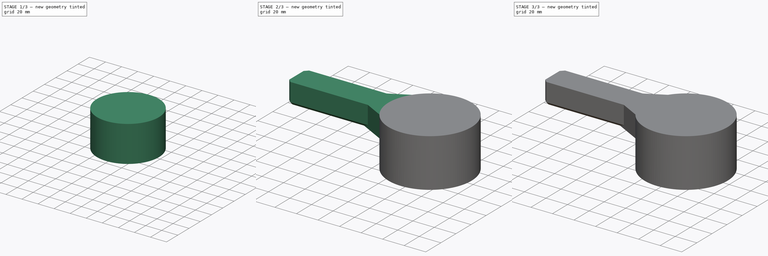
[diagram: build sequence overview — one tinted view per stage of 3, left to right]
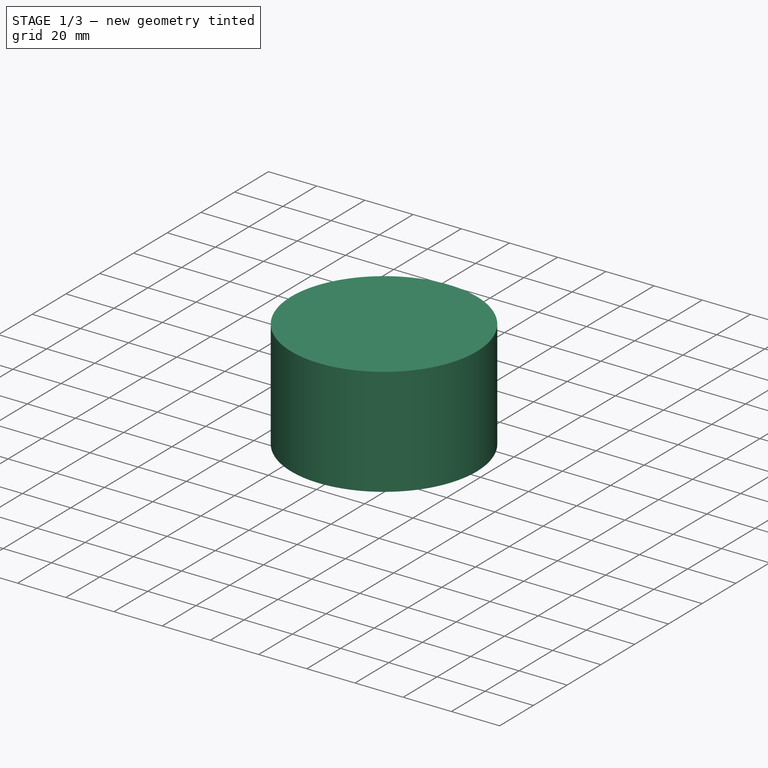
[diagram: stage 1 of 3 — iso view after this stage's code; geometry added in this stage tinted green]
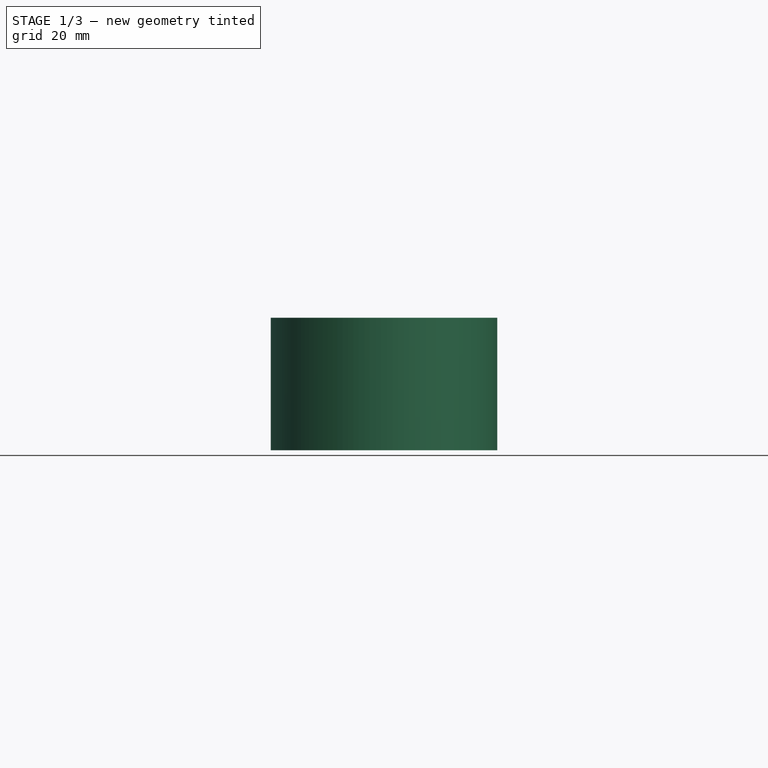
[diagram: stage 1 of 3 — front view after this stage's code; geometry added in this stage tinted green]
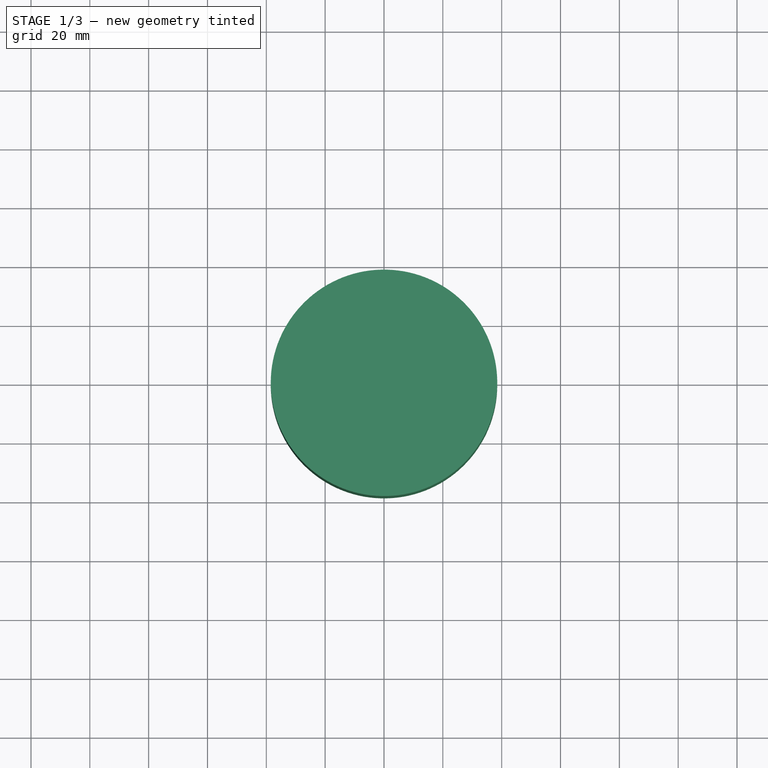
[diagram: stage 1 of 3 — top view after this stage's code; geometry added in this stage tinted green]
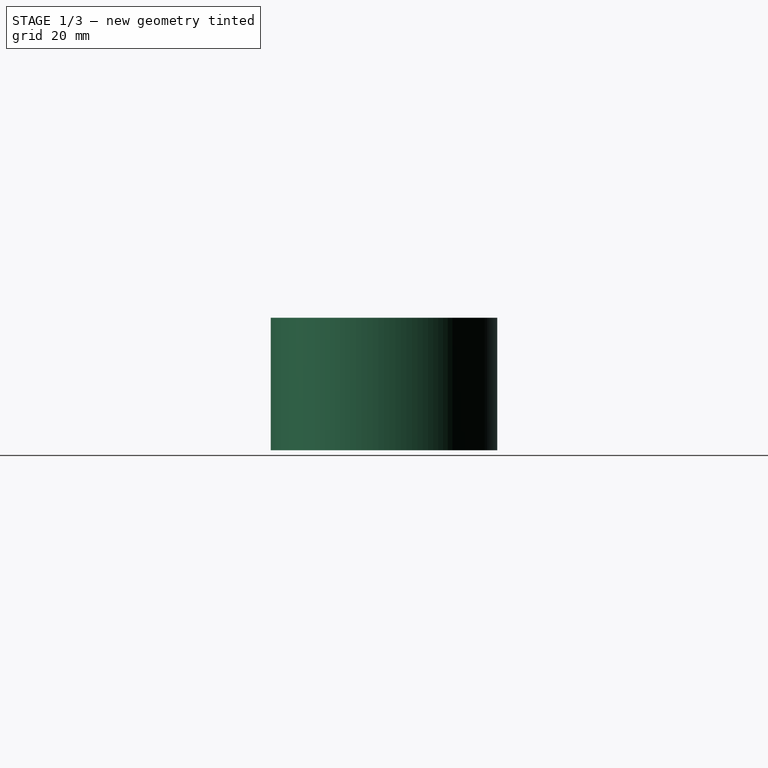
[diagram: stage 1 of 3 — right view after this stage's code; geometry added in this stage tinted green]
FCSTD DOCUMENT  (FreeCAD 1.1R40607 (Git))
Label: ключик под ключик
License: All rights reserved
LicenseURL: https://en.wikipedia.org/wiki/All_rights_reserved
objects: Sketcher::SketchObject×4, PartDesign::Pad×4, App::Point×2, PartDesign::Body×2, PartDesign::AdditiveLoft×1, PartDesign::Chamfer×1, PartDesign::Boolean×1
note: 30 computed .brp shape members not serialized (recipe doc carries the construction recipe); baked Part::Feature solids carry a one-line shape summary decoded from their .brp

FEATURE [PartDesign::Body] Body  label="Тело"
  AllowCompound = false
  Group = -> [Sketch,Pad]
  Origin = -> Origin
  Tip = -> Pad
FEATURE [App::Point] Origin003  label="Начало координат002"
  Role = Origin
FEATURE [Sketcher::SketchObject] Sketch001
  ArcFitTolerance = 1e-06
  AttachmentSupport = -> [XY_Plane001]
  ExternalTypes = [0]
  FullyConstrained = true
  MakeInternals = false
  MapMode = 5
  sketch-geometry (1):
    g0: Circle CenterX=0 CenterY=0 CenterZ=0 NormalX=0 NormalY=0 NormalZ=1 AngleXU=0 Radius=38.5
  constraints (2):
    c: Coincident(g0,g-1)
    c: Diameter(g0) = 77
FEATURE [PartDesign::Pad] Pad001
  Direction = (0,0,1)
  Length = 30
  Length2 = 10
  Profile = -> Sketch001
  ReferenceAxis = -> Sketch001 [N_Axis]
  Refine = true
  Suppressed = false
  Type = 0
FEATURE [Sketcher::SketchObject] Sketch004
  ArcFitTolerance = 1e-06
  AttachmentOffset = pos=(0,0,-49) rot=(0,0,1;0rad)
  AttachmentSupport = -> [YZ_Plane001]
  ExternalTypes = [0]
  FullyConstrained = true
  MakeInternals = false
  MapMode = 5
  Placement = pos=(-49,0,0) rot=(0.57735,0.57735,0.57735;2.0944rad)
  sketch-geometry (5):
    g0: LineSegment StartX=12.5 StartY=44.9999 StartZ=0 EndX=-12.5 EndY=44.9999 EndZ=0
    g1: LineSegment StartX=-12.5 StartY=44.9999 StartZ=0 EndX=-12.5 EndY=24.9999 EndZ=0
    g2: LineSegment StartX=-12.5 StartY=24.9999 StartZ=0 EndX=12.5 EndY=24.9999 EndZ=0
    g3: LineSegment StartX=12.5 StartY=24.9999 StartZ=0 EndX=12.5 EndY=44.9999 EndZ=0
    g4: GeomPoint X=0 Y=34.9999 Z=0
  constraints (13):
    c: Coincident(g0,g1)
    c: Coincident(g1,g2)
    c: Coincident(g2,g3)
    c: Coincident(g3,g0)
    c: Horizontal(g0)
    c: Horizontal(g2)
    c: Vertical(g1)
    c: Vertical(g3)
    c: PointOnObject(g0,g-3)
    c: Symmetric(g1,g0,g4)
    c: PointOnObject(g4,g-2)
    c: DistanceX(g2,g2) = 25
    c: DistanceY(g3,g3) = 20
FEATURE [PartDesign::Pad] Pad003
  BaseFeature = -> Pad001
  Direction = (0,0,1)
  Length = 15
  Length2 = 10
  Profile = -> Pad001 [Face3]
  Refine = true
  Suppressed = false
  Type = 0
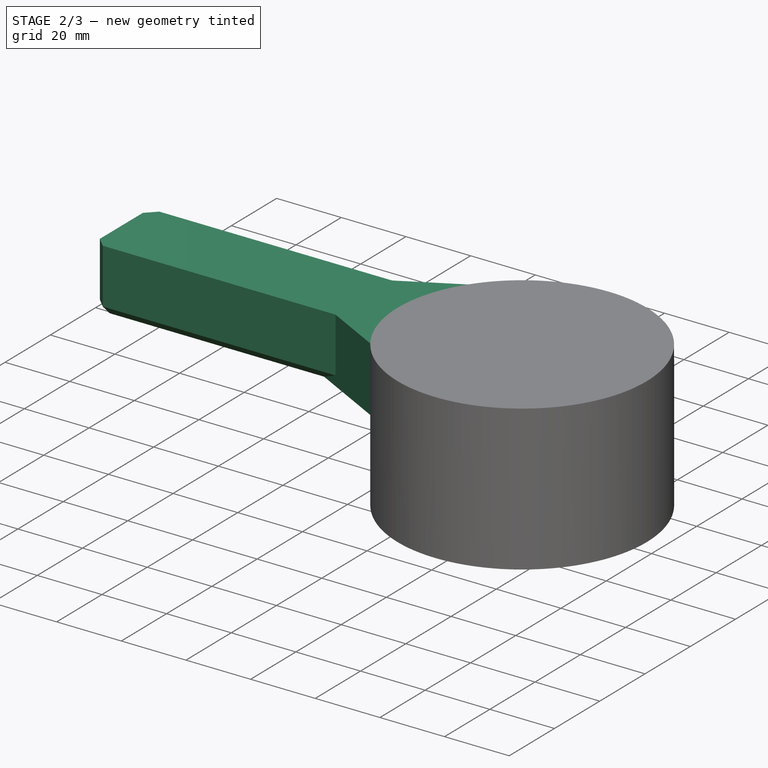
[diagram: stage 2 of 3 — iso view after this stage's code; geometry added in this stage tinted green]
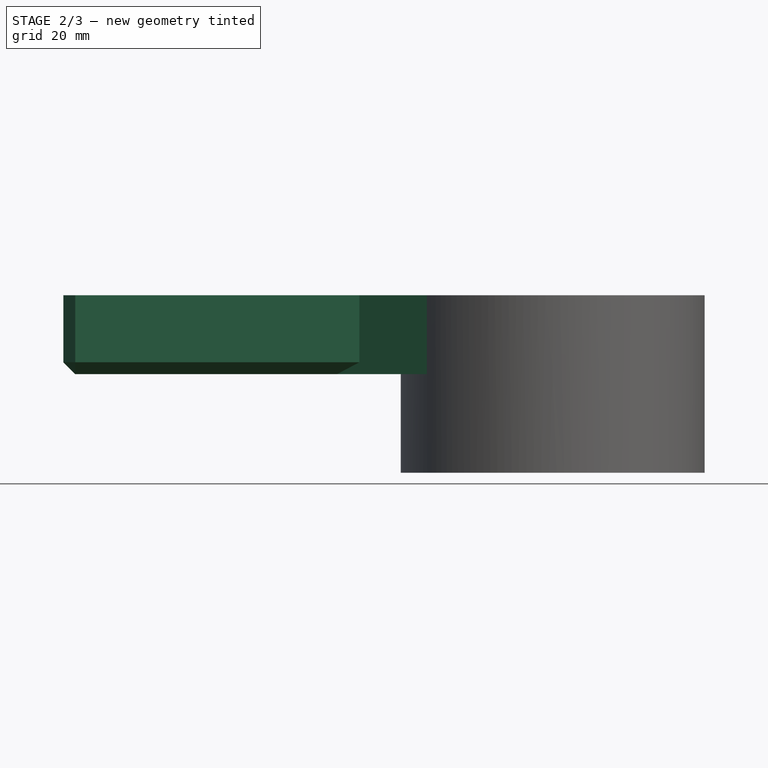
[diagram: stage 2 of 3 — front view after this stage's code; geometry added in this stage tinted green]
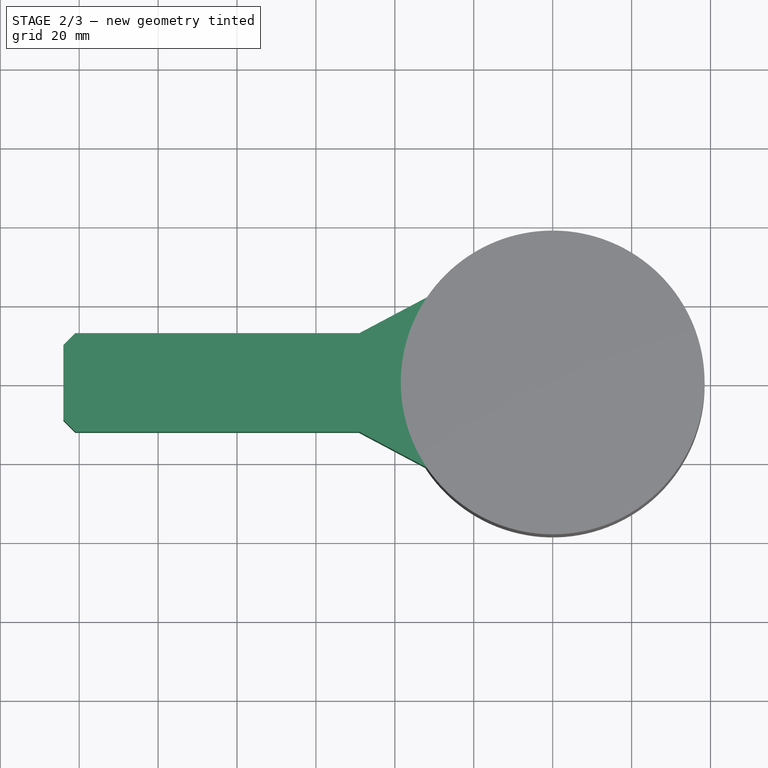
[diagram: stage 2 of 3 — top view after this stage's code; geometry added in this stage tinted green]
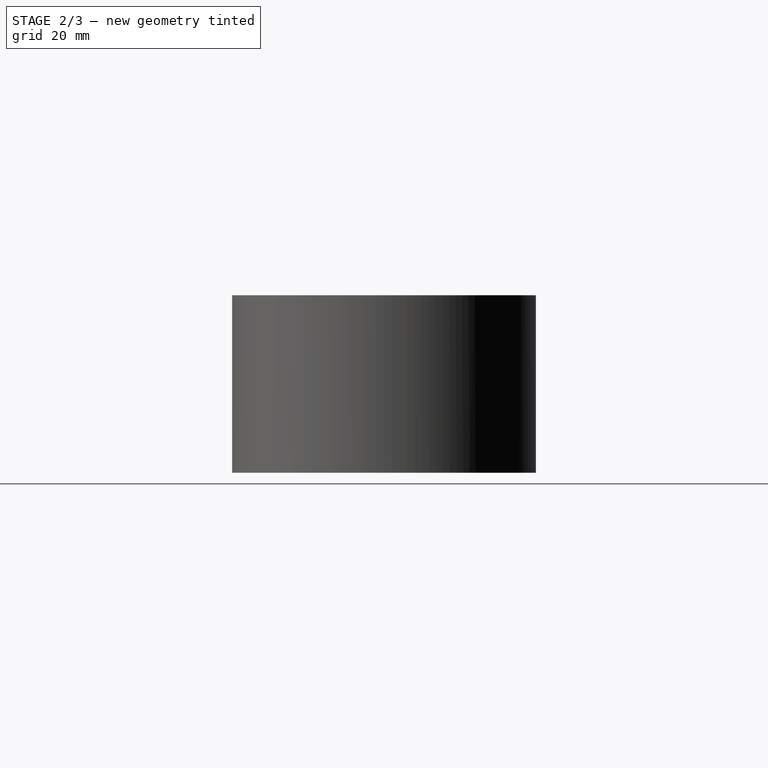
[diagram: stage 2 of 3 — right view after this stage's code; geometry added in this stage tinted green]
FEATURE [Sketcher::SketchObject] Sketch003
  ArcFitTolerance = 1e-06
  AttachmentSupport = -> [YZ_Plane001]
  ExternalGeometry = -> [Pad003]
  ExternalTypes = [0]
  FullyConstrained = true
  MakeInternals = false
  MapMode = 5
  Placement = pos=(0,0,0) rot=(0.57735,0.57735,0.57735;2.0944rad)
  sketch-geometry (4):
    g0: LineSegment StartX=-38.5 StartY=45 StartZ=0 EndX=-38.5 EndY=25 EndZ=0
    g1: LineSegment StartX=-38.5 StartY=25 StartZ=0 EndX=38.5 EndY=25 EndZ=0
    g2: LineSegment StartX=38.5 StartY=25 StartZ=0 EndX=38.5 EndY=45 EndZ=0
    g3: LineSegment StartX=38.5 StartY=45 StartZ=0 EndX=-38.5 EndY=45 EndZ=0
  constraints (10):
    c: Coincident(g0,g1)
    c: Coincident(g1,g2)
    c: Coincident(g2,g3)
    c: Coincident(g3,g0)
    c: Vertical(g0)
    c: Vertical(g2)
    c: Horizontal(g1)
    c: Coincident(g0,g-3)
    c: Coincident(g-3,g2)
    c: DistanceY(g2,g2) = 20
FEATURE [PartDesign::AdditiveLoft] AdditiveLoft
  BaseFeature = -> Pad003
  Closed = false
  Profile = -> Sketch003
  Refine = true
  Ruled = false
  Sections = -> [Sketch004]
  Suppressed = false
FEATURE [PartDesign::Pad] Pad004
  BaseFeature = -> AdditiveLoft
  Direction = (-1,0,0)
  Length = 75
  Length2 = 10
  Profile = -> AdditiveLoft [Face7]
  Refine = true
  Suppressed = false
  Type = 0
FEATURE [PartDesign::Chamfer] Chamfer
  Angle = 45
  Base = -> Pad004 [Edge22,Edge24,Edge25,Edge27,Edge23]
  BaseFeature = -> Pad004
  ChamferType = 0
  FlipDirection = false
  Refine = true
  Size = 3
  Size2 = 1
  SupportTransform = false
  Suppressed = false
  UseAllEdges = false
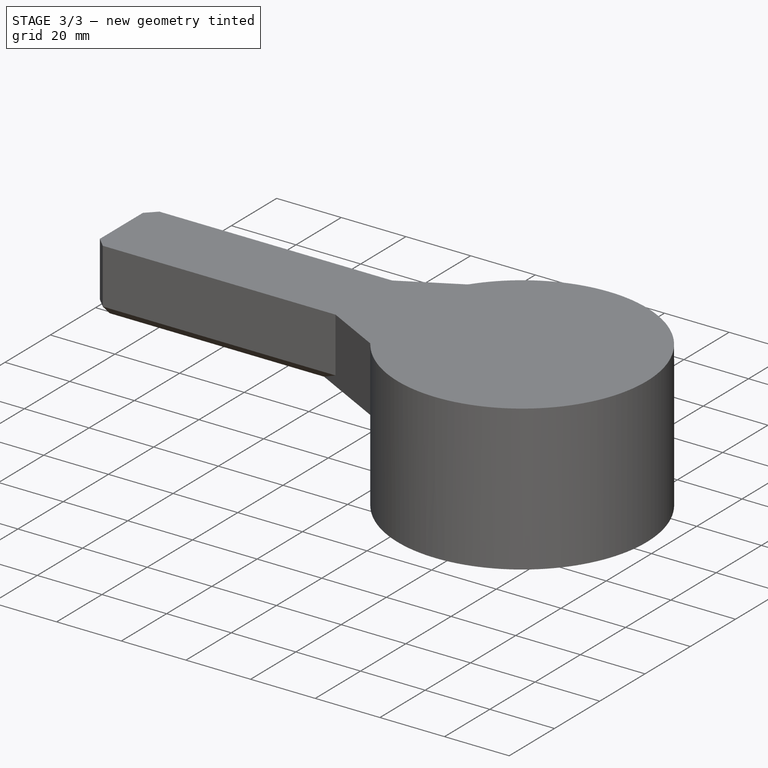
[diagram: stage 3 of 3 — iso view after this stage's code; geometry added in this stage tinted green]
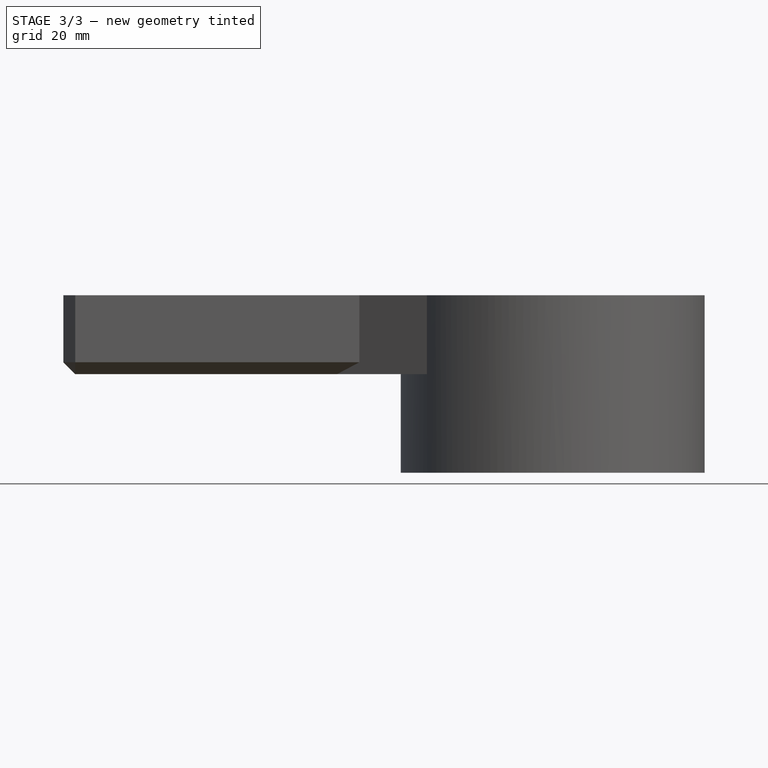
[diagram: stage 3 of 3 — front view after this stage's code; geometry added in this stage tinted green]
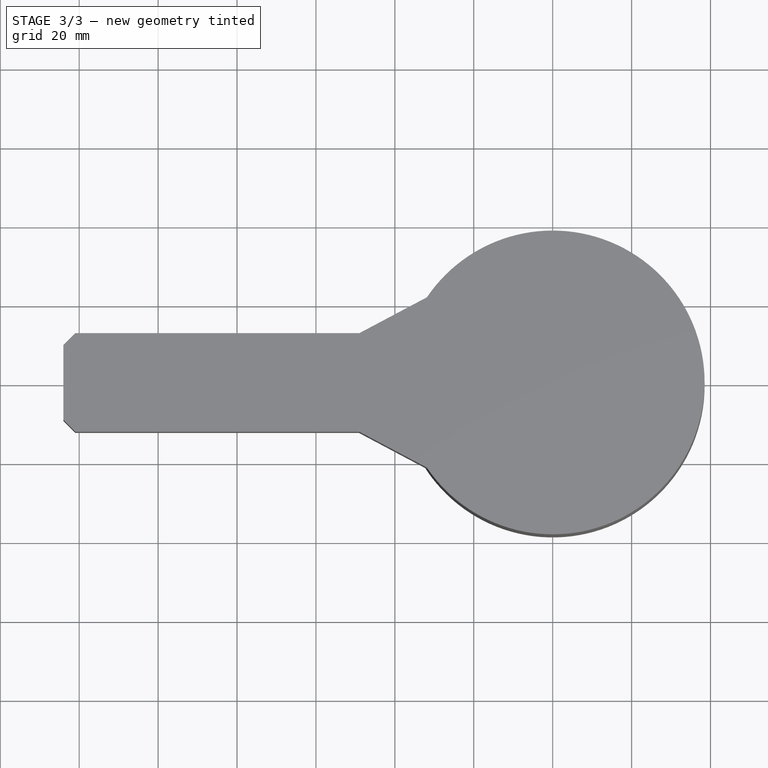
[diagram: stage 3 of 3 — top view after this stage's code; geometry added in this stage tinted green]
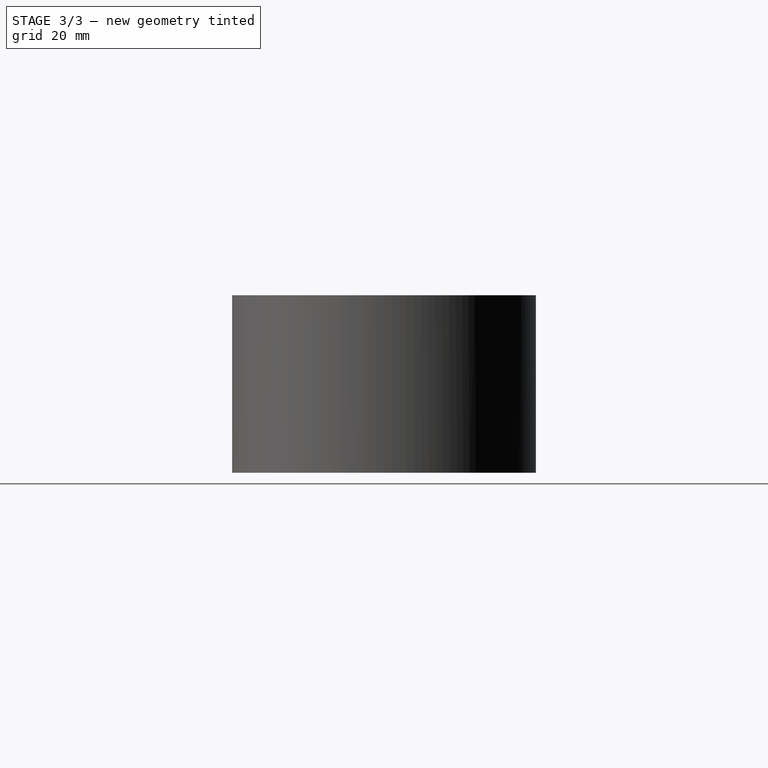
[diagram: stage 3 of 3 — right view after this stage's code; geometry added in this stage tinted green]
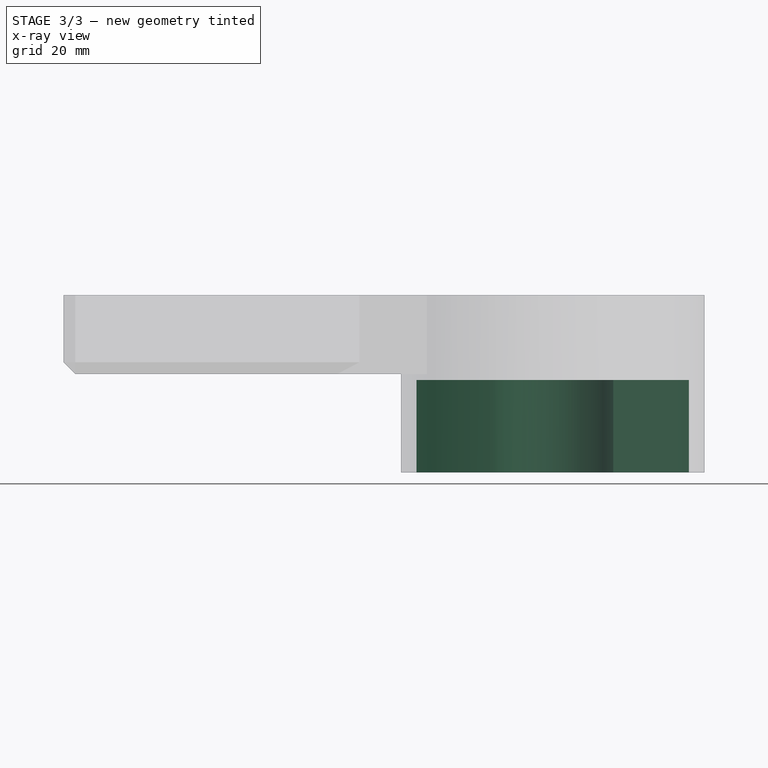
[diagram: stage 3 of 3 — x-ray composite at the front view; earlier geometry ghosted, this stage's added geometry solid]
FEATURE [App::Point] Origin001  label="Начало координат"
  Role = Origin
FEATURE [Sketcher::SketchObject] Sketch
  ArcFitTolerance = 1e-06
  AttachmentSupport = -> [XY_Plane]
  ExternalTypes = [0]
  FullyConstrained = true
  MakeInternals = false
  MapMode = 5
  sketch-geometry (12):
    g0: ArcOfCircle CenterX=0 CenterY=0 CenterZ=0 NormalX=0 NormalY=0 NormalZ=1 AngleXU=0 Radius=16 StartAngle=3.42669 EndAngle=5.99809
    g1: LineSegment StartX=15.3542 StartY=4.5 StartZ=0 EndX=34.5 EndY=4.5 EndZ=0
    g2: LineSegment StartX=34.5 StartY=4.5 StartZ=0 EndX=34.5 EndY=-4.5 EndZ=0
    g3: LineSegment StartX=34.5 StartY=-4.5 StartZ=0 EndX=15.3542 EndY=-4.5 EndZ=0
    g4: LineSegment StartX=-15.3542 StartY=4.5 StartZ=0 EndX=-34.5 EndY=4.5 EndZ=0
    g5: LineSegment StartX=-34.5 StartY=4.5 StartZ=0 EndX=-34.5 EndY=-4.5 EndZ=0
    g6: LineSegment StartX=-34.5 StartY=-4.5 StartZ=0 EndX=-15.3542 EndY=-4.5 EndZ=0
    g7: ArcOfCircle CenterX=-1.2e-15 CenterY=4e-16 CenterZ=0 NormalX=0 NormalY=0 NormalZ=1 AngleXU=0 Radius=16 StartAngle=0.285096 EndAngle=2.8565
    g8: GeomPoint X=0 Y=-16 Z=0
    g9: GeomPoint X=0 Y=16 Z=0
    g10: LineSegment [constr] StartX=0 StartY=-16 StartZ=0 EndX=15.3542 EndY=-4.5 EndZ=0
    g11: LineSegment [constr] StartX=15.3542 StartY=4.5 StartZ=0 EndX=0 EndY=16 EndZ=0
  constraints (31):
    c: Coincident(g0,g-1)
    c: Coincident(g1,g2)
    c: Coincident(g2,g3)
    c: Horizontal(g4)
    c: Coincident(g4,g5)
    c: Coincident(g5,g6)
    c: Equal(g4,g1)
    c: Horizontal(g6)
    c: Horizontal(g1)
    c: Horizontal(g3)
    c: Vertical(g5)
    c: Distance(g5,g5) = 9
    c: Equal(g5,g2)
    c: Vertical(g2)
    c: DistanceX(g5,g2) = 69
    c: Symmetric(g6,g4,g-1)
    c: Symmetric(g3,g1,g-1)
    c: Coincident(g6,g0)
    c: Coincident(g7,g4)
    c: Diameter(g0) = 32
    c: Coincident(g3,g0)
    c: Coincident(g7,g1)
    c: PointOnObject(g8,g0)
    c: PointOnObject(g9,g7)
    c: PointOnObject(g9,g-2)
    c: PointOnObject(g8,g-2)
    c: Coincident(g10,g8)
    c: Coincident(g10,g0)
    c: Coincident(g11,g1)
    c: Coincident(g11,g9)
    c: Equal(g10,g11)
FEATURE [PartDesign::Pad] Pad
  Direction = (0,0,1)
  Length = 23.5
  Length2 = 10
  Profile = -> Sketch
  ReferenceAxis = -> Sketch [N_Axis]
  Refine = true
  Suppressed = false
  Type = 0
FEATURE [PartDesign::Boolean] Boolean
  BaseFeature = -> Chamfer
  Group = -> [Body]
  Suppressed = false
  Type = 1
  UsePlacement = true
FEATURE [PartDesign::Body] Body001  label="Тело001"
  AllowCompound = false
  Group = -> [Sketch001,Pad001,Sketch003,Sketch004,Pad003,AdditiveLoft,Pad004,Chamfer,Boolean]
  Origin = -> Origin002
  Tip = -> Boolean
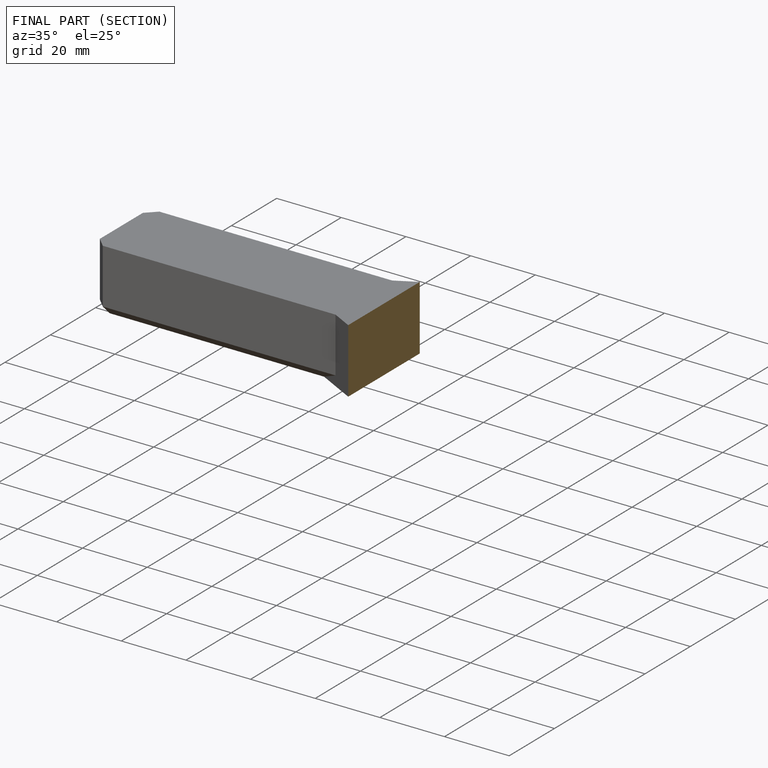
[diagram: finished part — half-section view (interior)]
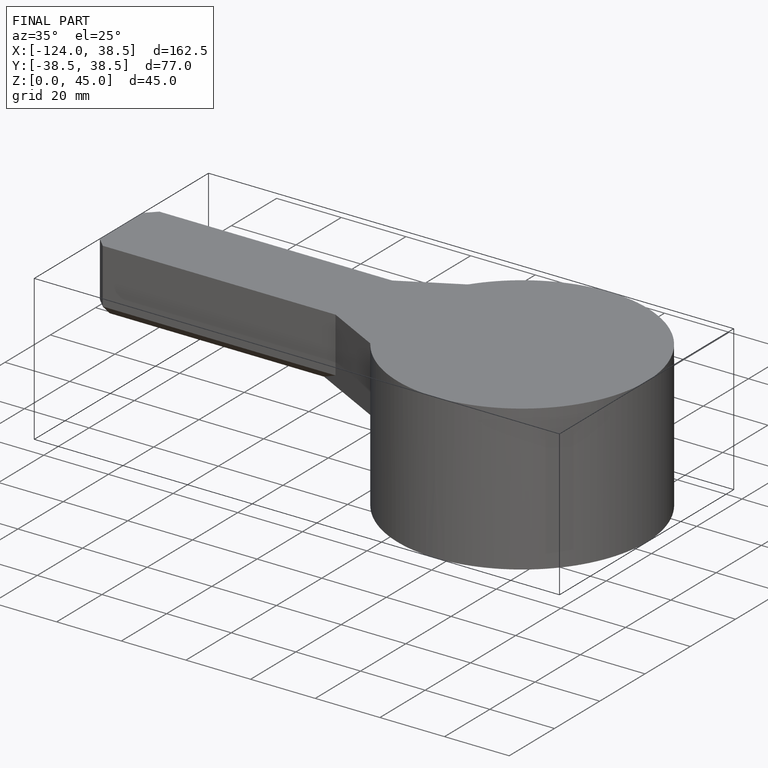
[diagram: finished part — iso view with bounding-box wireframe]
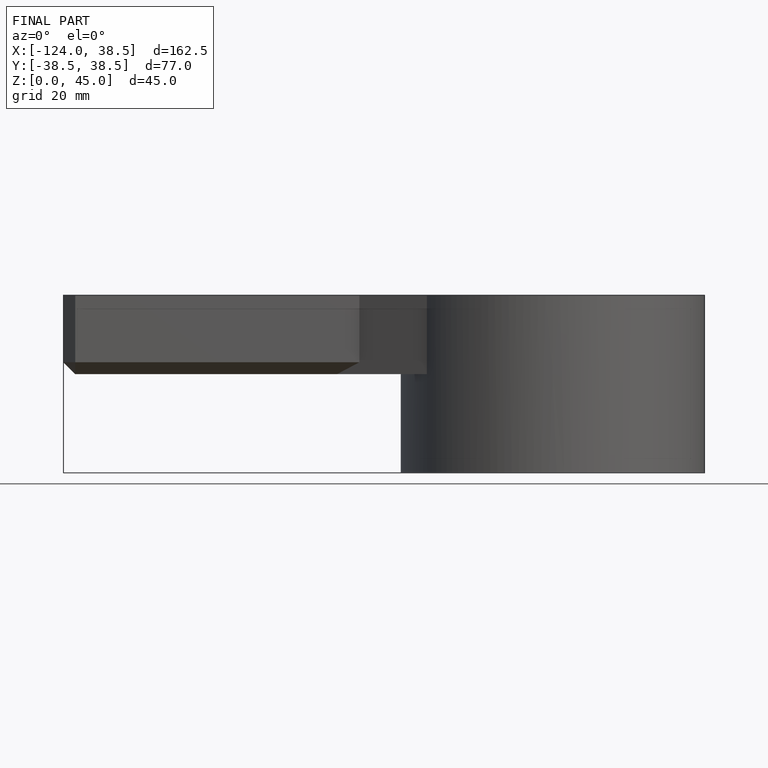
[diagram: finished part — front view with bounding-box wireframe]
